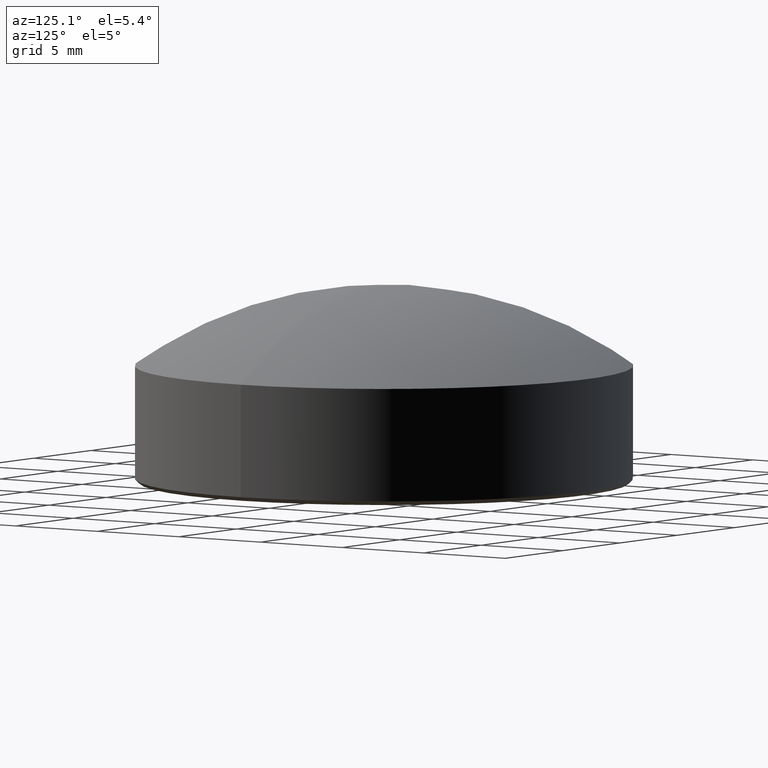
[diagram: clean part render]
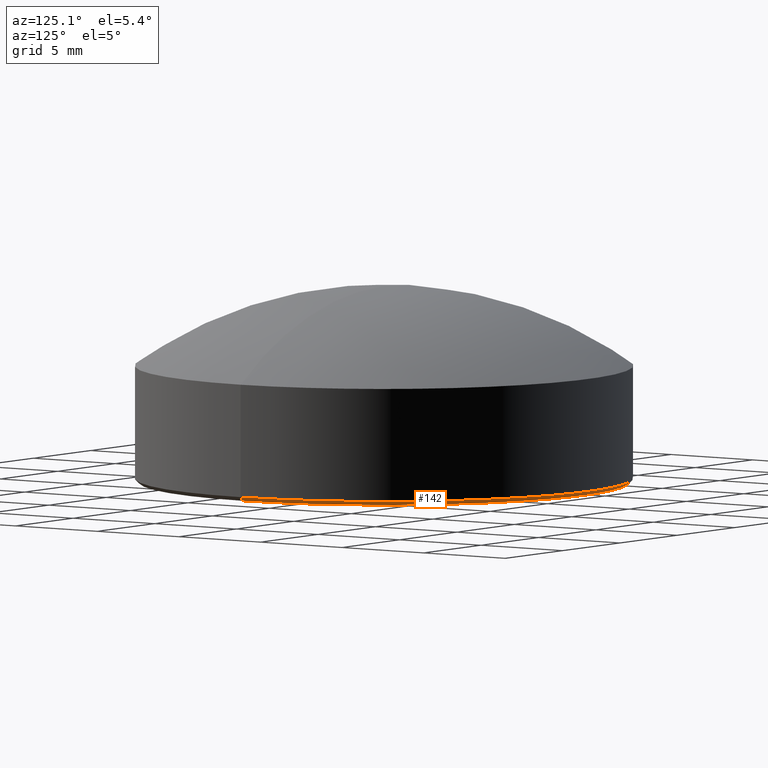
[diagram: same view with one face highlighted and labeled with its STEP entity id]
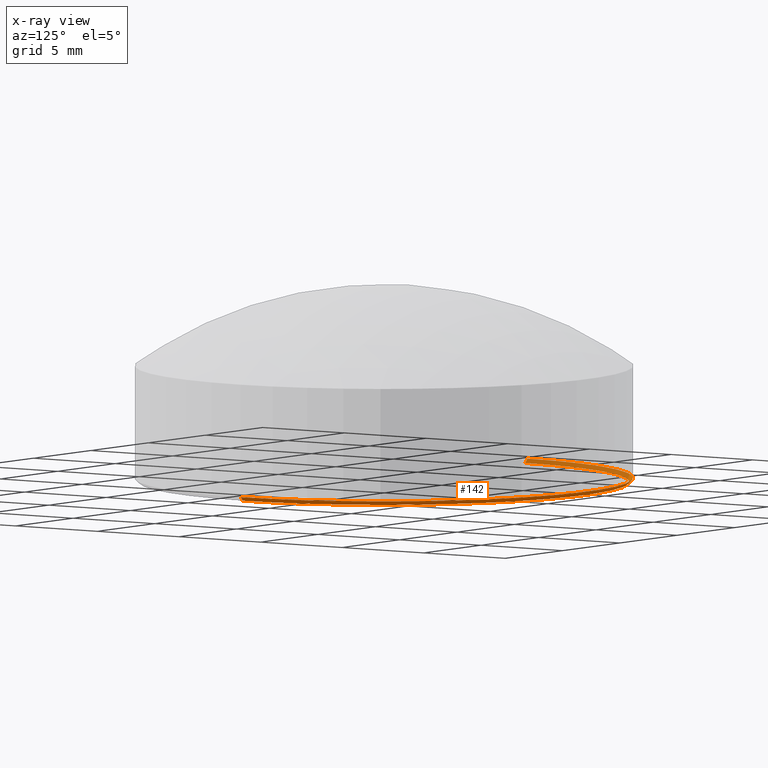
[diagram: x-ray of the same camera — body ghosted, the highlighted face saturated]
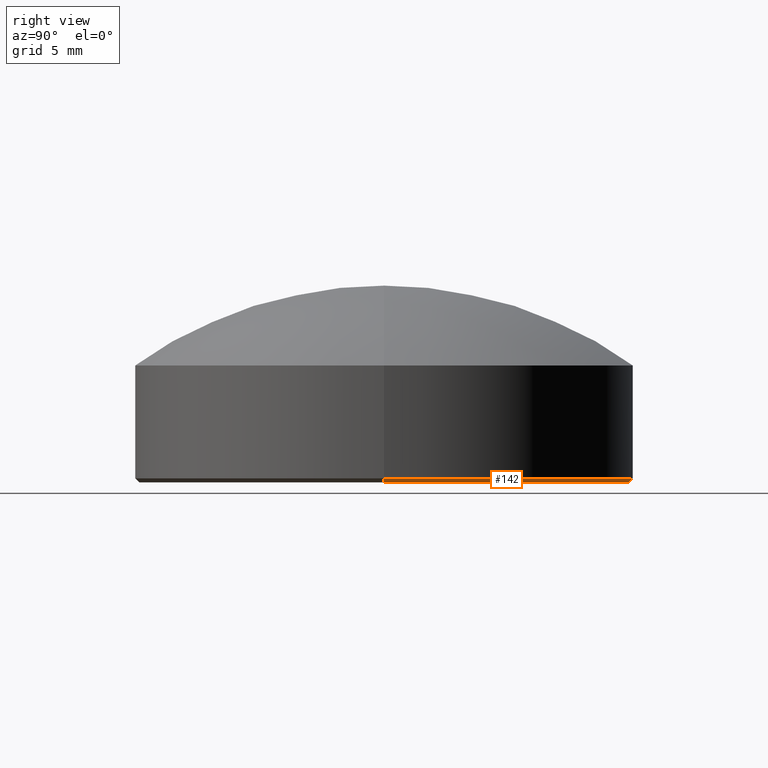
[diagram: same view with one face highlighted and labeled with its STEP entity id]
A machine part, auxiliary view. The second image highlights one B-rep face of the part: STEP entity #142.
The next image is the same camera in x-ray: the body ghosted, the highlighted face saturated — about 26% of this face is hidden behind the body in this view.
A second angle (right view) of the same face is appended — the face is thin or edge-on in the first view.
In plain terms, the highlighted conical surface has half-angle 45 deg.
Its self-contained STEP definition (entity closure, byte-faithful):
#3 = DIRECTION ( 'NONE',  ( 1.000000000000000000, 0.000000000000000000, 0.000000000000000000 ) ) ;
#19 = CARTESIAN_POINT ( 'NONE',  ( 0.000000000000000000, 0.000000000000000000, 0.2000000000000178857 ) ) ;
#31 = CARTESIAN_POINT ( 'NONE',  ( 12.50000000000000000, 0.000000000000000000, 0.2000000000000178857 ) ) ;
#32 = CARTESIAN_POINT ( 'NONE',  ( 12.29999999999998295, 0.000000000000000000, 0.000000000000000000 ) ) ;
#33 = VERTEX_POINT ( 'NONE', #161 ) ;
#37 = DIRECTION ( 'NONE',  ( -0.000000000000000000, -0.000000000000000000, 1.000000000000000000 ) ) ;
#43 = VERTEX_POINT ( 'NONE', #100 ) ;
#46 = ORIENTED_EDGE ( 'NONE', *, *, #173, .F. ) ;
#50 = LINE ( 'NONE', #31, #75 ) ;
#52 = DIRECTION ( 'NONE',  ( 1.000000000000000000, 0.000000000000000000, 0.000000000000000000 ) ) ;
#54 = CARTESIAN_POINT ( 'NONE',  ( 0.000000000000000000, 0.000000000000000000, 0.000000000000000000 ) ) ;
#56 = CARTESIAN_POINT ( 'NONE',  ( -12.29999999999998295, 1.518562030942716981E-15, 0.000000000000000000 ) ) ;
#67 = DIRECTION ( 'NONE',  ( 0.7071067811865474617, 0.000000000000000000, 0.7071067811865474617 ) ) ;
#75 = VECTOR ( 'NONE', #67, 1000.000000000000114 ) ;
#79 = VERTEX_POINT ( 'NONE', #32 ) ;
#100 = CARTESIAN_POINT ( 'NONE',  ( -12.50000000000000000, 0.000000000000000000, 0.2000000000000178857 ) ) ;
#101 = FACE_OUTER_BOUND ( 'NONE', #132, .T. ) ;
#102 = DIRECTION ( 'NONE',  ( 1.000000000000000000, 0.000000000000000000, 0.000000000000000000 ) ) ;
#104 = CARTESIAN_POINT ( 'NONE',  ( -12.50000000000000000, 1.530808498934191521E-15, 0.2000000000000178857 ) ) ;
#105 = EDGE_CURVE ( 'NONE', #79, #33, #50, .T. ) ;
#107 = AXIS2_PLACEMENT_3D ( 'NONE', #19, #37, #102 ) ;
#112 = EDGE_CURVE ( 'NONE', #33, #43, #164, .T. ) ;
#113 = ORIENTED_EDGE ( 'NONE', *, *, #112, .F. ) ;
#117 = VERTEX_POINT ( 'NONE', #56 ) ;
#130 = CARTESIAN_POINT ( 'NONE',  ( 0.000000000000000000, 0.000000000000000000, 0.2000000000000178857 ) ) ;
#132 = EDGE_LOOP ( 'NONE', ( #46, #140, #113, #178 ) ) ;
#140 = ORIENTED_EDGE ( 'NONE', *, *, #153, .T. ) ;
#142 = ADVANCED_FACE ( 'NONE', ( #101 ), #193, .T. ) ;
#149 = AXIS2_PLACEMENT_3D ( 'NONE', #54, #167, #3 ) ;
#150 = DIRECTION ( 'NONE',  ( -0.7071067811865474617, 8.659560562354932858E-17, 0.7071067811865474617 ) ) ;
#153 = EDGE_CURVE ( 'NONE', #117, #43, #185, .T. ) ;
#161 = CARTESIAN_POINT ( 'NONE',  ( 12.50000000000000000, 1.530808498934191127E-15, 0.2000000000000178857 ) ) ;
#164 = CIRCLE ( 'NONE', #192, 12.50000000000000000 ) ;
#167 = DIRECTION ( 'NONE',  ( -0.000000000000000000, -0.000000000000000000, -1.000000000000000000 ) ) ;
#173 = EDGE_CURVE ( 'NONE', #117, #79, #199, .T. ) ;
#177 = VECTOR ( 'NONE', #150, 1000.000000000000114 ) ;
#178 = ORIENTED_EDGE ( 'NONE', *, *, #105, .F. ) ;
#185 = LINE ( 'NONE', #104, #177 ) ;
#192 = AXIS2_PLACEMENT_3D ( 'NONE', #130, #216, #52 ) ;
#193 = CONICAL_SURFACE ( 'NONE', #107, 12.50000000000000000, 0.7853981633974482790 ) ;
#199 = CIRCLE ( 'NONE', #149, 12.29999999999998295 ) ;
#216 = DIRECTION ( 'NONE',  ( -0.000000000000000000, -0.000000000000000000, 1.000000000000000000 ) ) ;